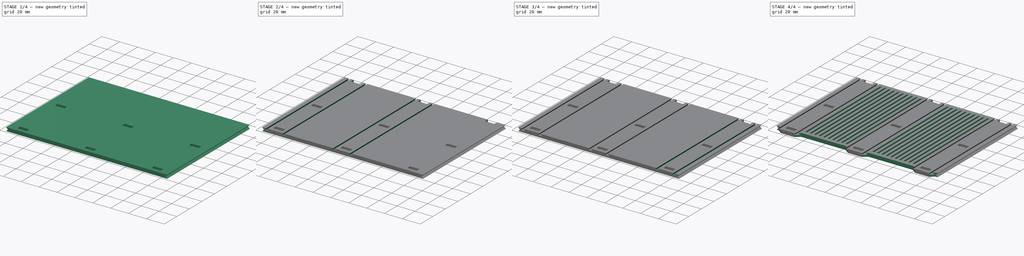
[diagram: build sequence overview — one tinted view per stage of 4, left to right]
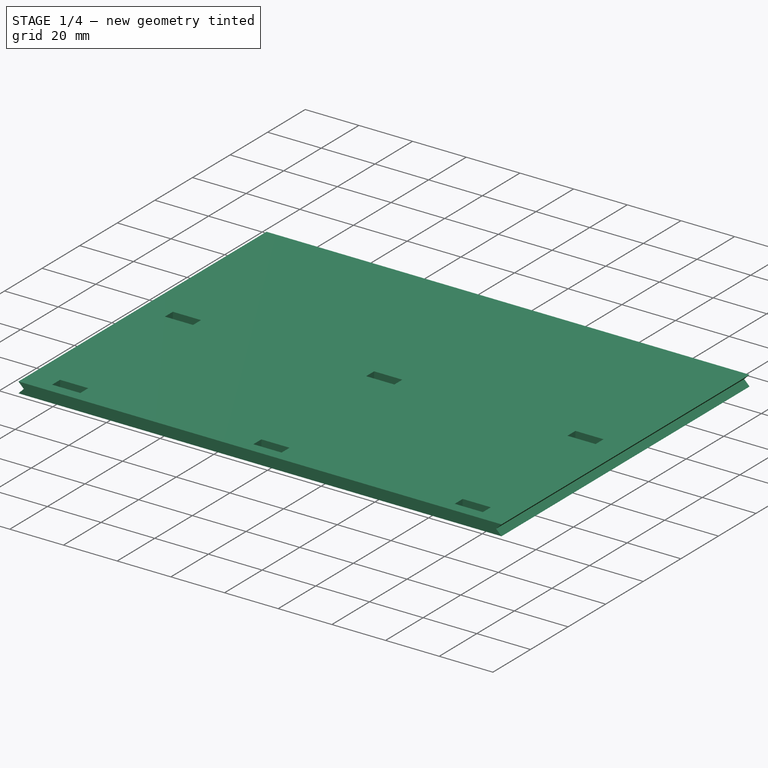
[diagram: stage 1 of 4 — iso view after this stage's code; geometry added in this stage tinted green]
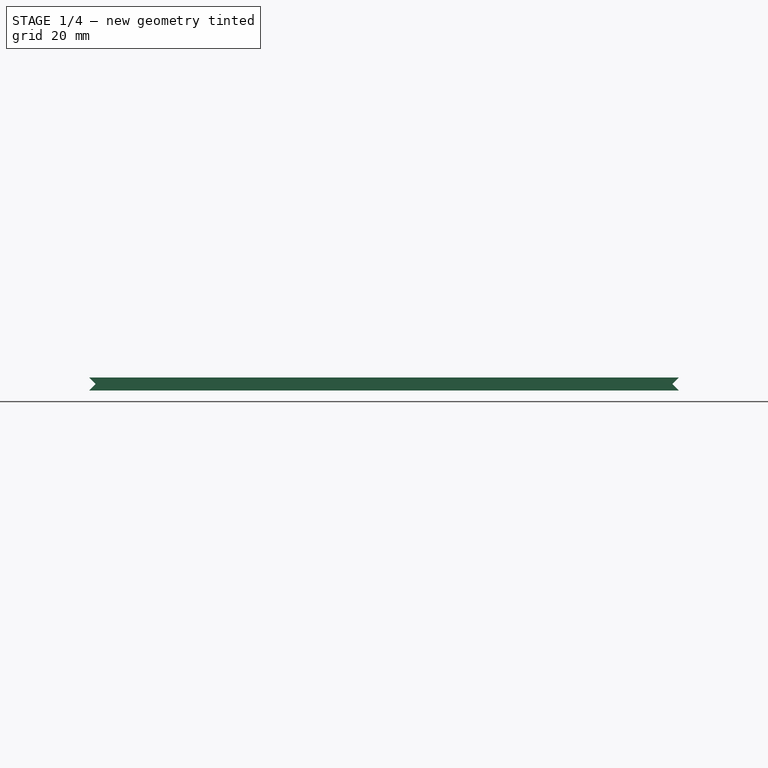
[diagram: stage 1 of 4 — front view after this stage's code; geometry added in this stage tinted green]
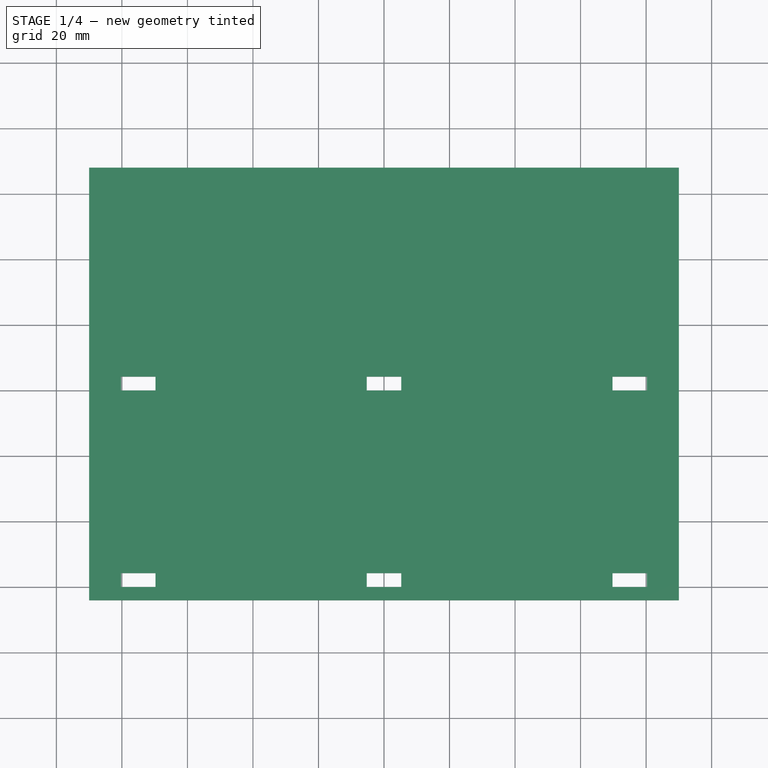
[diagram: stage 1 of 4 — top view after this stage's code; geometry added in this stage tinted green]
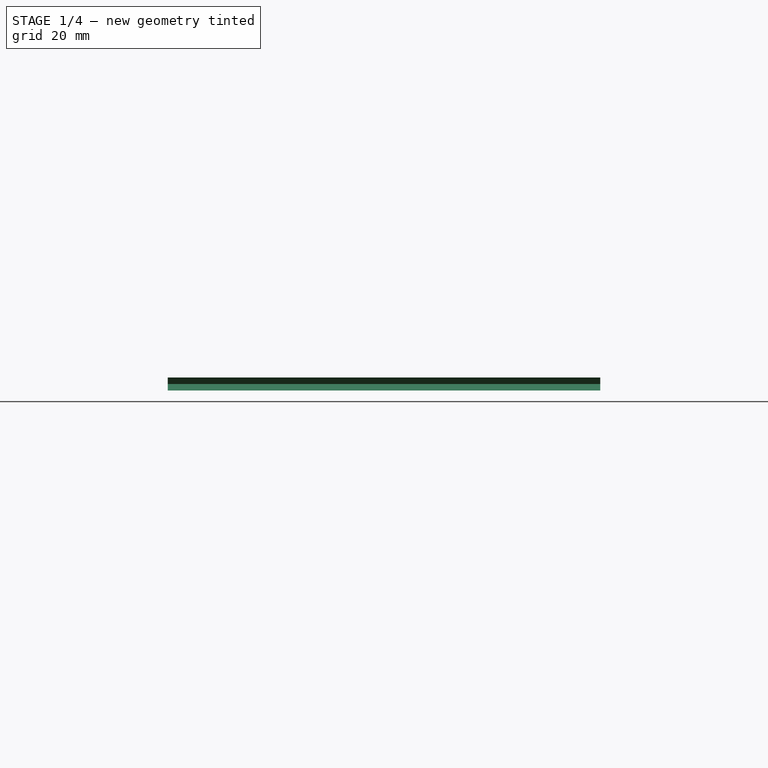
[diagram: stage 1 of 4 — right view after this stage's code; geometry added in this stage tinted green]
FCSTD DOCUMENT  (FreeCAD 0.18R16131 (Git))
Label: Wall
License: All rights reserved
LicenseURL: http://en.wikipedia.org/wiki/All_rights_reserved
objects: Sketcher::SketchObject×11, PartDesign::Pocket×8, PartDesign::Plane×7, PartDesign::AdditiveLoft×1, PartDesign::Fillet×1, PartDesign::Body×1, App::Part×1, Part::FeaturePython×1
note: 39 computed .brp shape members not serialized (recipe doc carries the construction recipe); baked Part::Feature solids carry a one-line shape summary decoded from their .brp

FEATURE [Sketcher::SketchObject] Sketch  label="HolesSketch1"
  MapMode = 5
  Support = -> [XY_Plane001]
  sketch-geometry (12):
    g0: LineSegment StartX=-80.25 StartY=4.25 StartZ=0 EndX=-69.75 EndY=4.25 EndZ=0
    g1: LineSegment StartX=-69.75 StartY=4.25 StartZ=0 EndX=-69.75 EndY=0 EndZ=0
    g2: LineSegment StartX=-69.75 StartY=0 StartZ=0 EndX=-80.25 EndY=1e-16 EndZ=0
    g3: LineSegment StartX=-80.25 StartY=1e-16 StartZ=0 EndX=-80.25 EndY=4.25 EndZ=0
    g4: LineSegment StartX=-5.25 StartY=4.25 StartZ=0 EndX=5.25 EndY=4.25 EndZ=0
    g5: LineSegment StartX=5.25 StartY=4.25 StartZ=0 EndX=5.25 EndY=0 EndZ=0
    g6: LineSegment StartX=5.25 StartY=0 StartZ=0 EndX=-5.25 EndY=0 EndZ=0
    g7: LineSegment StartX=-5.25 StartY=0 StartZ=0 EndX=-5.25 EndY=4.25 EndZ=0
    g8: LineSegment StartX=69.75 StartY=4.25 StartZ=0 EndX=80.25 EndY=4.25 EndZ=0
    g9: LineSegment StartX=80.25 StartY=4.25 StartZ=0 EndX=80.25 EndY=0 EndZ=0
    g10: LineSegment StartX=80.25 StartY=0 StartZ=0 EndX=69.75 EndY=0 EndZ=0
    g11: LineSegment StartX=69.75 StartY=0 StartZ=0 EndX=69.75 EndY=4.25 EndZ=0
  constraints (33):
    c: Coincident(g0,g1)
    c: Coincident(g1,g2)
    c: Coincident(g2,g3)
    c: Coincident(g3,g0)
    c: Horizontal(g0)
    c: Vertical(g1)
    c: Vertical(g3)
    c: PointOnObject(g1,g-1)
    c: Coincident(g4,g5)
    c: Coincident(g5,g6)
    c: Coincident(g6,g7)
    c: Coincident(g7,g4)
    c: Vertical(g5)
    c: Vertical(g7)
    c: PointOnObject(g5,g-1)
    c: Coincident(g8,g9)
    c: Coincident(g9,g10)
    c: Coincident(g10,g11)
    c: Coincident(g11,g8)
    c: Vertical(g9)
    c: Symmetric(g6,g5,g-2)
    c: Symmetric(g1,g10,g-2)
    c: Symmetric(g9,g2,g-2)
    c: Equal(g3,g1)
    c: Equal(g1,g7)
    c: Equal(g7,g5)
    c: Equal(g5,g11)
    c: Equal(g11,g9)
    c: Equal(g0,g4)
    c: Equal(g4,g8)
    c: Distance(g4) = 10.5
    c: Distance(g7) = 4.25
    c: Distance(g0,g8) = 160.5
FEATURE [PartDesign::Plane] DatumPlane  label="HolesPlane2"
  AttachmentOffset = pos=(0,60,0) rot=(0,0,1;0rad)
  Length = 30.3441
  MapMode = 5
  Placement = pos=(0,60,0) rot=(0,0,1;0rad)
  ResizeMode = 0
  Support = -> [XY_Plane001]
  Width = 144.094
FEATURE [PartDesign::Plane] DatumPlane001  label="HolesPlane3"
  AttachmentOffset = pos=(0,123.75,0) rot=(0,0,1;0rad)
  Length = 30.3441
  MapMode = 5
  Placement = pos=(0,123.75,0) rot=(0,0,1;0rad)
  ResizeMode = 0
  Support = -> [XY_Plane001]
  Width = 144.094
FEATURE [Sketcher::SketchObject] Sketch001  label="HolesSketch2"
  MapMode = 5
  Placement = pos=(0,60,0) rot=(0,0,1;0rad)
  Support = -> [DatumPlane]
  sketch-geometry (12):
    g0: LineSegment StartX=-80.25 StartY=4.25 StartZ=0 EndX=-69.75 EndY=4.25 EndZ=0
    g1: LineSegment StartX=-69.75 StartY=4.25 StartZ=0 EndX=-69.75 EndY=0 EndZ=0
    g2: LineSegment StartX=-69.75 StartY=0 StartZ=0 EndX=-80.25 EndY=1e-16 EndZ=0
    g3: LineSegment StartX=-80.25 StartY=1e-16 StartZ=0 EndX=-80.25 EndY=4.25 EndZ=0
    g4: LineSegment StartX=-5.25 StartY=4.25 StartZ=0 EndX=5.25 EndY=4.25 EndZ=0
    g5: LineSegment StartX=5.25 StartY=4.25 StartZ=0 EndX=5.25 EndY=0 EndZ=0
    g6: LineSegment StartX=5.25 StartY=0 StartZ=0 EndX=-5.25 EndY=0 EndZ=0
    g7: LineSegment StartX=-5.25 StartY=0 StartZ=0 EndX=-5.25 EndY=4.25 EndZ=0
    g8: LineSegment StartX=69.75 StartY=4.25 StartZ=0 EndX=80.25 EndY=4.25 EndZ=0
    g9: LineSegment StartX=80.25 StartY=4.25 StartZ=0 EndX=80.25 EndY=0 EndZ=0
    g10: LineSegment StartX=80.25 StartY=0 StartZ=0 EndX=69.75 EndY=0 EndZ=0
    g11: LineSegment StartX=69.75 StartY=0 StartZ=0 EndX=69.75 EndY=4.25 EndZ=0
  constraints (33):
    c: Coincident(g0,g1)
    c: Coincident(g1,g2)
    c: Coincident(g2,g3)
    c: Coincident(g3,g0)
    c: Horizontal(g0)
    c: Vertical(g1)
    c: Vertical(g3)
    c: PointOnObject(g1,g-1)
    c: Coincident(g4,g5)
    c: Coincident(g5,g6)
    c: Coincident(g6,g7)
    c: Coincident(g7,g4)
    c: Vertical(g5)
    c: Vertical(g7)
    c: PointOnObject(g5,g-1)
    c: Coincident(g8,g9)
    c: Coincident(g9,g10)
    c: Coincident(g10,g11)
    c: Coincident(g11,g8)
    c: Vertical(g9)
    c: Symmetric(g6,g5,g-2)
    c: Symmetric(g1,g10,g-2)
    c: Symmetric(g9,g2,g-2)
    c: Equal(g3,g1)
    c: Equal(g1,g7)
    c: Equal(g7,g5)
    c: Equal(g5,g11)
    c: Equal(g11,g9)
    c: Equal(g0,g4)
    c: Equal(g4,g8)
    c: Distance(g4) = 10.5
    c: Distance(g7) = 4.25
    c: Distance(g0,g8) = 160.5
FEATURE [Sketcher::SketchObject] Sketch002  label="HolesSketch3"
  MapMode = 5
  Placement = pos=(0,123.75,0) rot=(0,0,1;0rad)
  Support = -> [DatumPlane001]
  sketch-geometry (12):
    g0: LineSegment StartX=-80.125 StartY=4.25 StartZ=0 EndX=-69.875 EndY=4.25 EndZ=0
    g1: LineSegment StartX=-69.875 StartY=4.25 StartZ=0 EndX=-69.875 EndY=0 EndZ=0
    g2: LineSegment StartX=-69.875 StartY=0 StartZ=0 EndX=-80.125 EndY=1e-16 EndZ=0
    g3: LineSegment StartX=-80.125 StartY=1e-16 StartZ=0 EndX=-80.125 EndY=4.25 EndZ=0
    g4: LineSegment StartX=-5.125 StartY=4.25 StartZ=0 EndX=5.125 EndY=4.25 EndZ=0
    g5: LineSegment StartX=5.125 StartY=4.25 StartZ=0 EndX=5.125 EndY=0 EndZ=0
    g6: LineSegment StartX=5.125 StartY=0 StartZ=0 EndX=-5.125 EndY=0 EndZ=0
    g7: LineSegment StartX=-5.125 StartY=0 StartZ=0 EndX=-5.125 EndY=4.25 EndZ=0
    g8: LineSegment StartX=69.875 StartY=4.25 StartZ=0 EndX=80.125 EndY=4.25 EndZ=0
    g9: LineSegment StartX=80.125 StartY=4.25 StartZ=0 EndX=80.125 EndY=0 EndZ=0
    g10: LineSegment StartX=80.125 StartY=0 StartZ=0 EndX=69.875 EndY=0 EndZ=0
    g11: LineSegment StartX=69.875 StartY=0 StartZ=0 EndX=69.875 EndY=4.25 EndZ=0
  constraints (33):
    c: Coincident(g0,g1)
    c: Coincident(g1,g2)
    c: Coincident(g2,g3)
    c: Coincident(g3,g0)
    c: Horizontal(g0)
    c: Vertical(g1)
    c: Vertical(g3)
    c: PointOnObject(g1,g-1)
    c: Coincident(g4,g5)
    c: Coincident(g5,g6)
    c: Coincident(g6,g7)
    c: Coincident(g7,g4)
    c: Vertical(g5)
    c: Vertical(g7)
    c: PointOnObject(g5,g-1)
    c: Coincident(g8,g9)
    c: Coincident(g9,g10)
    c: Coincident(g10,g11)
    c: Coincident(g11,g8)
    c: Vertical(g9)
    c: Symmetric(g6,g5,g-2)
    c: Symmetric(g1,g10,g-2)
    c: Symmetric(g9,g2,g-2)
    c: Equal(g3,g1)
    c: Equal(g1,g7)
    c: Equal(g7,g5)
    c: Equal(g5,g11)
    c: Equal(g11,g9)
    c: Equal(g0,g4)
    c: Equal(g4,g8)
    c: Distance(g4) = 10.25
    c: Distance(g7) = 4.25
    c: Distance(g0,g8) = 160.25
FEATURE [Sketcher::SketchObject] Sketch003  label="WallSketchMid"
  MapMode = 5
  Support = -> [XY_Plane001]
  sketch-geometry (4):
    g0: LineSegment StartX=-88 StartY=128 StartZ=0 EndX=88 EndY=128 EndZ=0
    g1: LineSegment StartX=88 StartY=128 StartZ=0 EndX=88 EndY=-4 EndZ=0
    g2: LineSegment StartX=88 StartY=-4 StartZ=0 EndX=-88 EndY=-4 EndZ=0
    g3: LineSegment StartX=-88 StartY=-4 StartZ=0 EndX=-88 EndY=128 EndZ=0
  constraints (11):
    c: Coincident(g0,g1)
    c: Coincident(g1,g2)
    c: Coincident(g2,g3)
    c: Coincident(g3,g0)
    c: Horizontal(g2)
    c: Vertical(g1)
    c: Vertical(g3)
    c: Symmetric(g0,g0,g-2)
    c: Distance(g0) = 176
    c: DistanceY(g-1,g0) = 128
    c: DistanceY(g-1,g2) = -4
FEATURE [PartDesign::Plane] DatumPlane002  label="WallSketchPlaneTop"
  AttachmentOffset = pos=(0,0,2) rot=(0,0,1;0rad)
  Length = 30.3441
  MapMode = 5
  Placement = pos=(0,0,2) rot=(0,0,1;0rad)
  ResizeMode = 0
  Support = -> [XY_Plane001]
  Width = 144.094
FEATURE [Sketcher::SketchObject] Sketch004  label="WallSketchTop"
  MapMode = 5
  Placement = pos=(0,0,2) rot=(0,0,1;0rad)
  Support = -> [DatumPlane002]
  sketch-geometry (4):
    g0: LineSegment StartX=-90 StartY=128 StartZ=0 EndX=90 EndY=128 EndZ=0
    g1: LineSegment StartX=90 StartY=128 StartZ=0 EndX=90 EndY=-4 EndZ=0
    g2: LineSegment StartX=90 StartY=-4 StartZ=0 EndX=-90 EndY=-4 EndZ=0
    g3: LineSegment StartX=-90 StartY=-4 StartZ=0 EndX=-90 EndY=128 EndZ=0
  constraints (11):
    c: Coincident(g0,g1)
    c: Coincident(g1,g2)
    c: Coincident(g2,g3)
    c: Coincident(g3,g0)
    c: Horizontal(g2)
    c: Vertical(g1)
    c: Vertical(g3)
    c: Symmetric(g0,g0,g-2)
    c: Distance(g0) = 180
    c: DistanceY(g-1,g0) = 128
    c: DistanceY(g-1,g2) = -4
FEATURE [PartDesign::Plane] DatumPlane003  label="WallSketchPlaneBottom"
  AttachmentOffset = pos=(0,0,-2) rot=(0,0,1;0rad)
  Length = 30.3441
  MapMode = 5
  Placement = pos=(0,0,-2) rot=(0,0,1;0rad)
  ResizeMode = 0
  Support = -> [XY_Plane001]
  Width = 144.094
FEATURE [Sketcher::SketchObject] Sketch005  label="WallSketchBottom"
  MapMode = 5
  Placement = pos=(0,0,-2) rot=(0,0,1;0rad)
  Support = -> [DatumPlane003]
  sketch-geometry (4):
    g0: LineSegment StartX=-90 StartY=128 StartZ=0 EndX=90 EndY=128 EndZ=0
    g1: LineSegment StartX=90 StartY=128 StartZ=0 EndX=90 EndY=-4 EndZ=0
    g2: LineSegment StartX=90 StartY=-4 StartZ=0 EndX=-90 EndY=-4 EndZ=0
    g3: LineSegment StartX=-90 StartY=-4 StartZ=0 EndX=-90 EndY=128 EndZ=0
  constraints (11):
    c: Coincident(g0,g1)
    c: Coincident(g1,g2)
    c: Coincident(g2,g3)
    c: Coincident(g3,g0)
    c: Horizontal(g2)
    c: Vertical(g1)
    c: Vertical(g3)
    c: Symmetric(g0,g0,g-2)
    c: Distance(g0) = 180
    c: DistanceY(g-1,g0) = 128
    c: DistanceY(g-1,g2) = -4
FEATURE [PartDesign::AdditiveLoft] AdditiveLoft
  Closed = false
  Placement = pos=(0,0,-2) rot=(0,0,1;0rad)
  Profile = -> Sketch005
  Ruled = true
  Sections = -> [Sketch003,Sketch004]
FEATURE [PartDesign::Pocket] Pocket
  BaseFeature = -> AdditiveLoft
  Length = 5
  Length2 = 100
  Midplane = true
  Placement = pos=(0,0,-2) rot=(0,0,1;0rad)
  Profile = -> Sketch
  Type = 1
FEATURE [PartDesign::Pocket] Pocket001
  BaseFeature = -> Pocket
  Length = 5
  Length2 = 100
  Midplane = true
  Placement = pos=(0,0,-2) rot=(0,0,1;0rad)
  Profile = -> Sketch001
  Type = 1
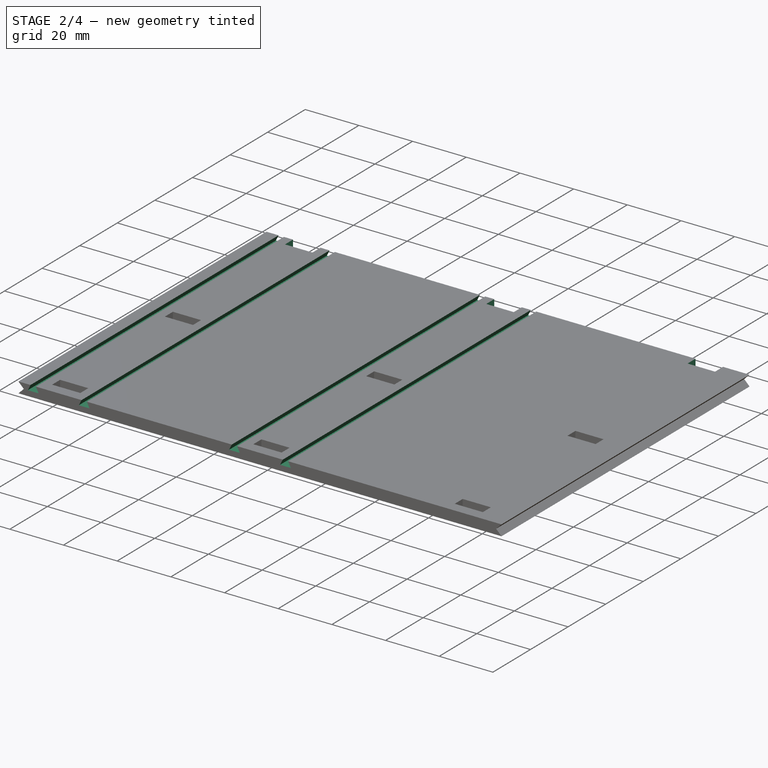
[diagram: stage 2 of 4 — iso view after this stage's code; geometry added in this stage tinted green]
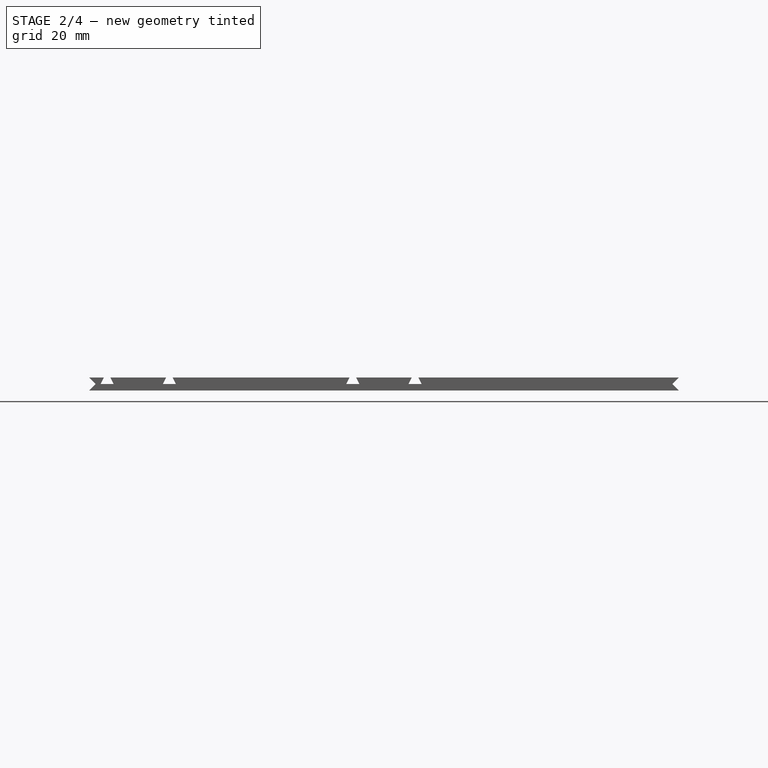
[diagram: stage 2 of 4 — front view after this stage's code; geometry added in this stage tinted green]
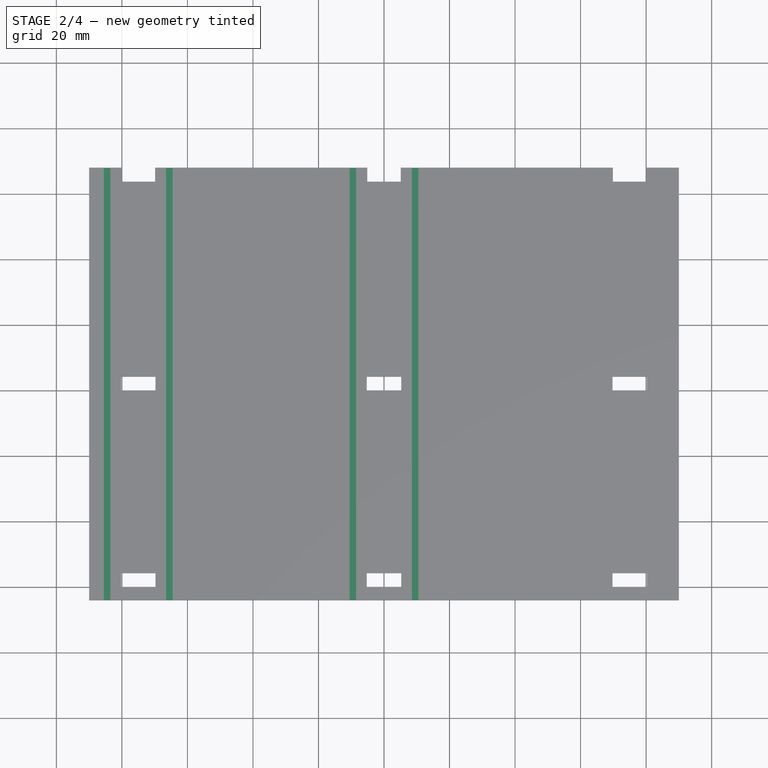
[diagram: stage 2 of 4 — top view after this stage's code; geometry added in this stage tinted green]
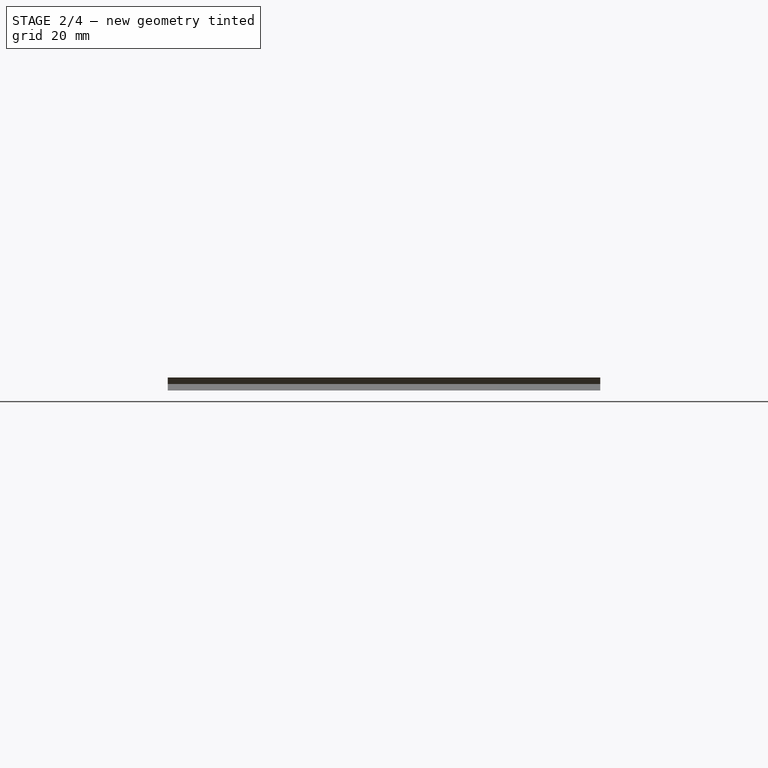
[diagram: stage 2 of 4 — right view after this stage's code; geometry added in this stage tinted green]
FEATURE [PartDesign::Pocket] Pocket002
  BaseFeature = -> Pocket001
  Length = 5
  Length2 = 100
  Midplane = true
  Placement = pos=(0,0,-2) rot=(0,0,1;0rad)
  Profile = -> Sketch002
  Type = 1
FEATURE [Sketcher::SketchObject] Sketch006  label="RailsSketch1"
  MapMode = 5
  Placement = pos=(0,0,0) rot=(1,0,0;1.5708rad)
  Support = -> [XZ_Plane001]
  sketch-geometry (8):
    g0: LineSegment StartX=-11.5 StartY=0 StartZ=0 EndX=-7.5 EndY=0 EndZ=0
    g1: LineSegment StartX=-11.5 StartY=0 StartZ=0 EndX=-10.5 EndY=2 EndZ=0
    g2: LineSegment StartX=-10.5 StartY=2 StartZ=0 EndX=-8.5 EndY=2 EndZ=0
    g3: LineSegment StartX=-8.5 StartY=2 StartZ=0 EndX=-7.5 EndY=0 EndZ=0
    g4: LineSegment StartX=7.5 StartY=0 StartZ=0 EndX=11.5 EndY=-1.62e-14 EndZ=0
    g5: LineSegment StartX=11.5 StartY=-1.62e-14 StartZ=0 EndX=10.5 EndY=2 EndZ=0
    g6: LineSegment StartX=10.5 StartY=2 StartZ=0 EndX=8.5 EndY=2 EndZ=0
    g7: LineSegment StartX=8.5 StartY=2 StartZ=0 EndX=7.5 EndY=0 EndZ=0
  constraints (22):
    c: Coincident(g1,g0)
    c: Coincident(g2,g1)
    c: Coincident(g3,g2)
    c: Coincident(g3,g0)
    c: Coincident(g5,g4)
    c: Coincident(g6,g5)
    c: Coincident(g7,g6)
    c: Coincident(g7,g4)
    c: Symmetric(g0,g4,g-2)
    c: Symmetric(g0,g4,g-2)
    c: Symmetric(g1,g5,g-2)
    c: Symmetric(g2,g6,g-2)
    c: PointOnObject(g0,g-1)
    c: PointOnObject(g0,g-1)
    c: Equal(g1,g3)
    c: Equal(g3,g7)
    c: Equal(g7,g5)
    c: Horizontal(g2)
    c: Distance(g0) = 4
    c: Distance(g0,g4) = 15
    c: DistanceY(g0,g1) = 2
    c: Distance(g2) = 2
FEATURE [PartDesign::Plane] DatumPlane004  label="RailsPlane2"
  AttachmentOffset = pos=(-75,0,0) rot=(0,0,1;0rad)
  Length = 93.2462
  MapMode = 5
  Placement = pos=(-75,0,0) rot=(1,0,0;1.5708rad)
  ResizeMode = 0
  Support = -> [XZ_Plane001]
  Width = 28.2462
FEATURE [Sketcher::SketchObject] Sketch007  label="RailsSketch2"
  MapMode = 5
  Placement = pos=(-75,0,0) rot=(1,0,0;1.5708rad)
  Support = -> [DatumPlane004]
  sketch-geometry (8):
    g0: LineSegment StartX=-11.5 StartY=0 StartZ=0 EndX=-7.5 EndY=0 EndZ=0
    g1: LineSegment StartX=-11.5 StartY=0 StartZ=0 EndX=-10.5 EndY=2 EndZ=0
    g2: LineSegment StartX=-10.5 StartY=2 StartZ=0 EndX=-8.5 EndY=2 EndZ=0
    g3: LineSegment StartX=-8.5 StartY=2 StartZ=0 EndX=-7.5 EndY=0 EndZ=0
    g4: LineSegment StartX=7.5 StartY=0 StartZ=0 EndX=11.5 EndY=-1.62e-14 EndZ=0
    g5: LineSegment StartX=11.5 StartY=-1.62e-14 StartZ=0 EndX=10.5 EndY=2 EndZ=0
    g6: LineSegment StartX=10.5 StartY=2 StartZ=0 EndX=8.5 EndY=2 EndZ=0
    g7: LineSegment StartX=8.5 StartY=2 StartZ=0 EndX=7.5 EndY=0 EndZ=0
  constraints (22):
    c: Coincident(g1,g0)
    c: Coincident(g2,g1)
    c: Coincident(g3,g2)
    c: Coincident(g3,g0)
    c: Coincident(g5,g4)
    c: Coincident(g6,g5)
    c: Coincident(g7,g6)
    c: Coincident(g7,g4)
    c: Symmetric(g0,g4,g-2)
    c: Symmetric(g0,g4,g-2)
    c: Symmetric(g1,g5,g-2)
    c: Symmetric(g2,g6,g-2)
    c: PointOnObject(g0,g-1)
    c: PointOnObject(g0,g-1)
    c: Equal(g1,g3)
    c: Equal(g3,g7)
    c: Equal(g7,g5)
    c: Horizontal(g2)
    c: Distance(g0) = 4
    c: Distance(g0,g4) = 15
    c: DistanceY(g0,g1) = 2
    c: Distance(g2) = 2
FEATURE [PartDesign::Plane] DatumPlane005  label="RailsPlane3"
  AttachmentOffset = pos=(75,0,0) rot=(0,0,1;0rad)
  Length = 93.2462
  MapMode = 5
  Placement = pos=(75,0,0) rot=(1,0,0;1.5708rad)
  ResizeMode = 0
  Support = -> [XZ_Plane001]
  Width = 28.2462
FEATURE [Sketcher::SketchObject] Sketch008  label="RailsSketch3"
  MapMode = 5
  Placement = pos=(75,0,0) rot=(1,0,0;1.5708rad)
  Support = -> [DatumPlane005]
  sketch-geometry (8):
    g0: LineSegment StartX=-11.5 StartY=0 StartZ=0 EndX=-7.5 EndY=0 EndZ=0
    g1: LineSegment StartX=-11.5 StartY=0 StartZ=0 EndX=-10.5 EndY=2 EndZ=0
    g2: LineSegment StartX=-10.5 StartY=2 StartZ=0 EndX=-8.5 EndY=2 EndZ=0
    g3: LineSegment StartX=-8.5 StartY=2 StartZ=0 EndX=-7.5 EndY=0 EndZ=0
    g4: LineSegment StartX=7.5 StartY=0 StartZ=0 EndX=11.5 EndY=-1.62e-14 EndZ=0
    g5: LineSegment StartX=11.5 StartY=-1.62e-14 StartZ=0 EndX=10.5 EndY=2 EndZ=0
    g6: LineSegment StartX=10.5 StartY=2 StartZ=0 EndX=8.5 EndY=2 EndZ=0
    g7: LineSegment StartX=8.5 StartY=2 StartZ=0 EndX=7.5 EndY=0 EndZ=0
  constraints (22):
    c: Coincident(g1,g0)
    c: Coincident(g2,g1)
    c: Coincident(g3,g2)
    c: Coincident(g3,g0)
    c: Coincident(g5,g4)
    c: Coincident(g6,g5)
    c: Coincident(g7,g6)
    c: Coincident(g7,g4)
    c: Symmetric(g0,g4,g-2)
    c: Symmetric(g0,g4,g-2)
    c: Symmetric(g1,g5,g-2)
    c: Symmetric(g2,g6,g-2)
    c: PointOnObject(g0,g-1)
    c: PointOnObject(g0,g-1)
    c: Equal(g1,g3)
    c: Equal(g3,g7)
    c: Equal(g7,g5)
    c: Horizontal(g2)
    c: Distance(g0) = 4
    c: Distance(g0,g4) = 15
    c: DistanceY(g0,g1) = 2
    c: Distance(g2) = 2
FEATURE [PartDesign::Pocket] Pocket003
  BaseFeature = -> Pocket002
  Length = 5
  Length2 = 100
  Midplane = true
  Placement = pos=(0,0,-2) rot=(0,0,1;0rad)
  Profile = -> Sketch006
  Type = 1
FEATURE [PartDesign::Pocket] Pocket004
  BaseFeature = -> Pocket003
  Length = 5
  Length2 = 100
  Midplane = true
  Placement = pos=(0,0,-2) rot=(0,0,1;0rad)
  Profile = -> Sketch007
  Type = 1
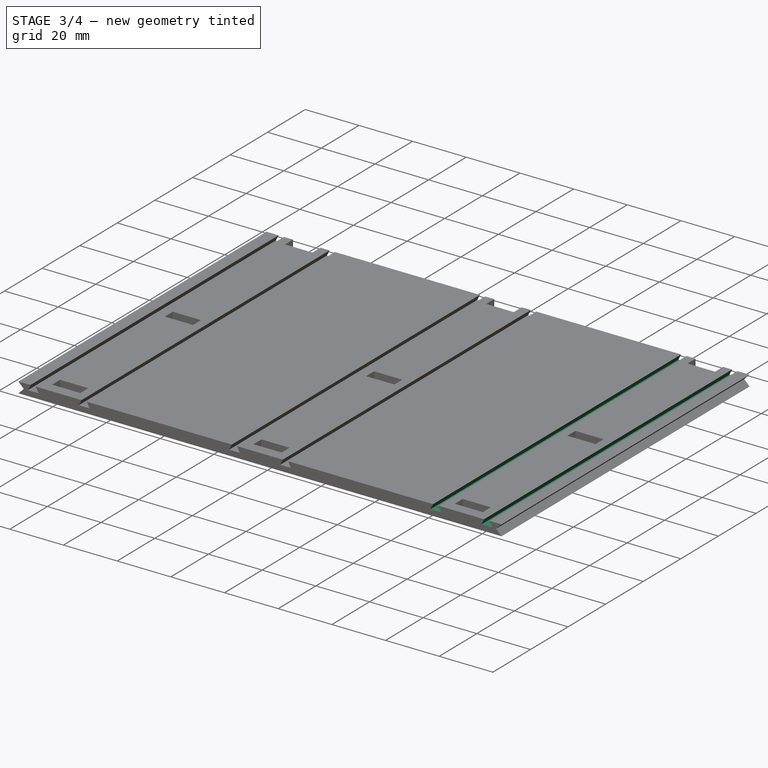
[diagram: stage 3 of 4 — iso view after this stage's code; geometry added in this stage tinted green]
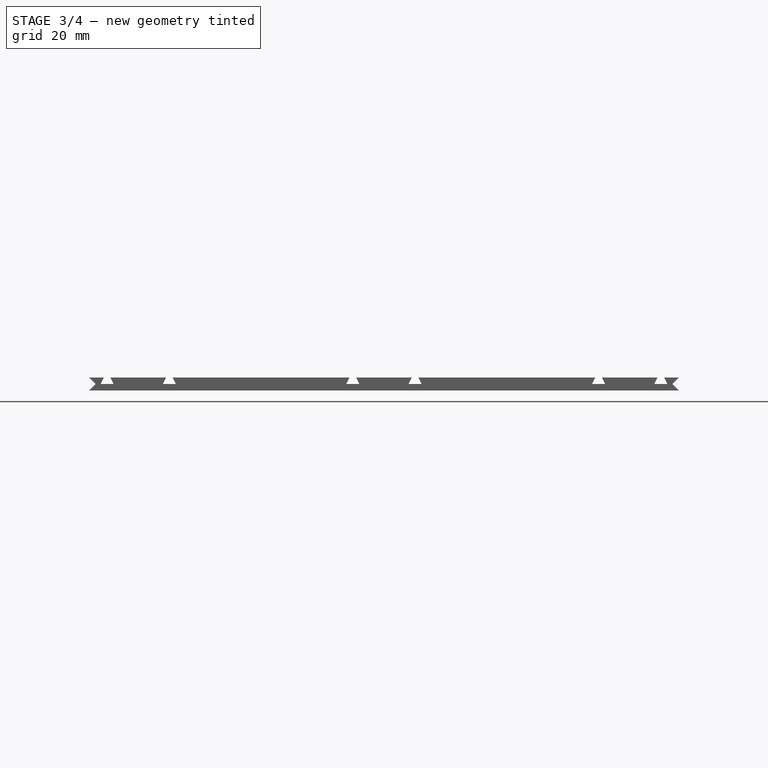
[diagram: stage 3 of 4 — front view after this stage's code; geometry added in this stage tinted green]
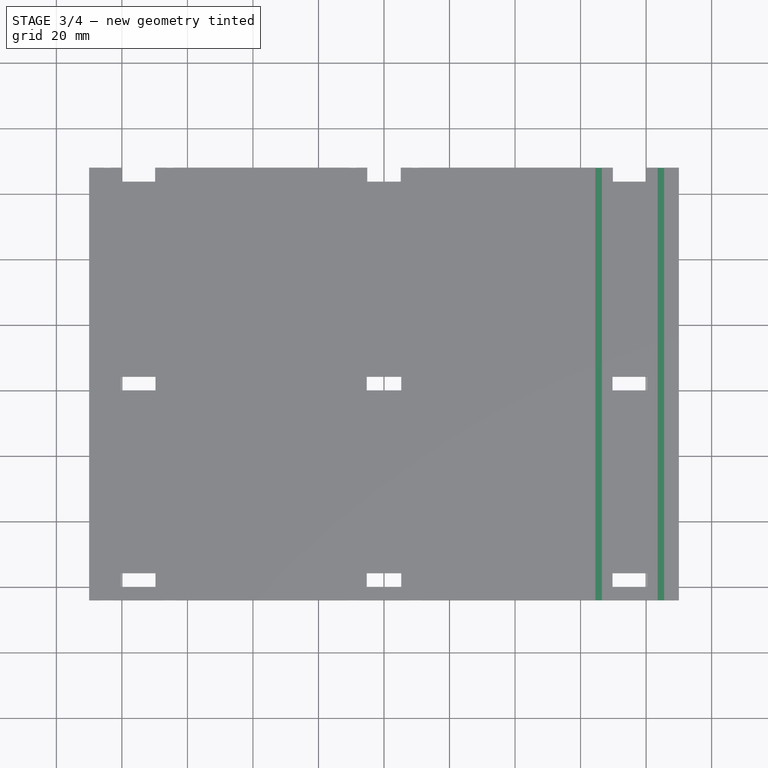
[diagram: stage 3 of 4 — top view after this stage's code; geometry added in this stage tinted green]
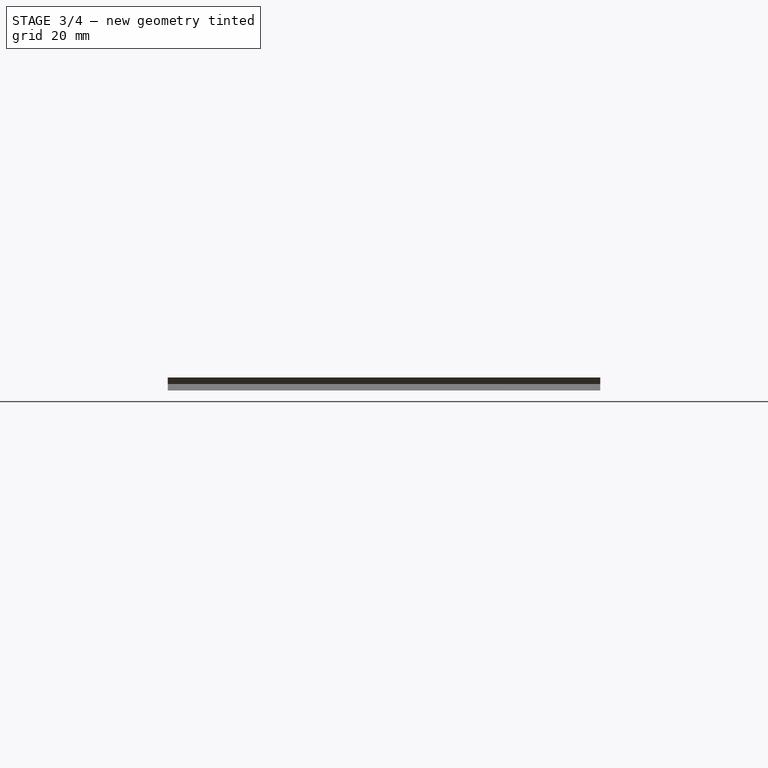
[diagram: stage 3 of 4 — right view after this stage's code; geometry added in this stage tinted green]
FEATURE [PartDesign::Pocket] Pocket005
  BaseFeature = -> Pocket004
  Length = 5
  Length2 = 100
  Midplane = true
  Placement = pos=(0,0,-2) rot=(0,0,1;0rad)
  Profile = -> Sketch008
  Type = 1
FEATURE [PartDesign::Fillet] Fillet
  Base = -> Pocket005 [Edge21,Edge24,Edge28,Edge25,Edge36,Edge33,Edge20,Edge17,Edge32,Edge29,Edge40,Edge37,Edge15,Edge13,Edge11,Edge9,Edge7,Edge5]
  BaseFeature = -> Pocket005
  Placement = pos=(0,0,-2) rot=(0,0,1;0rad)
  Radius = 1
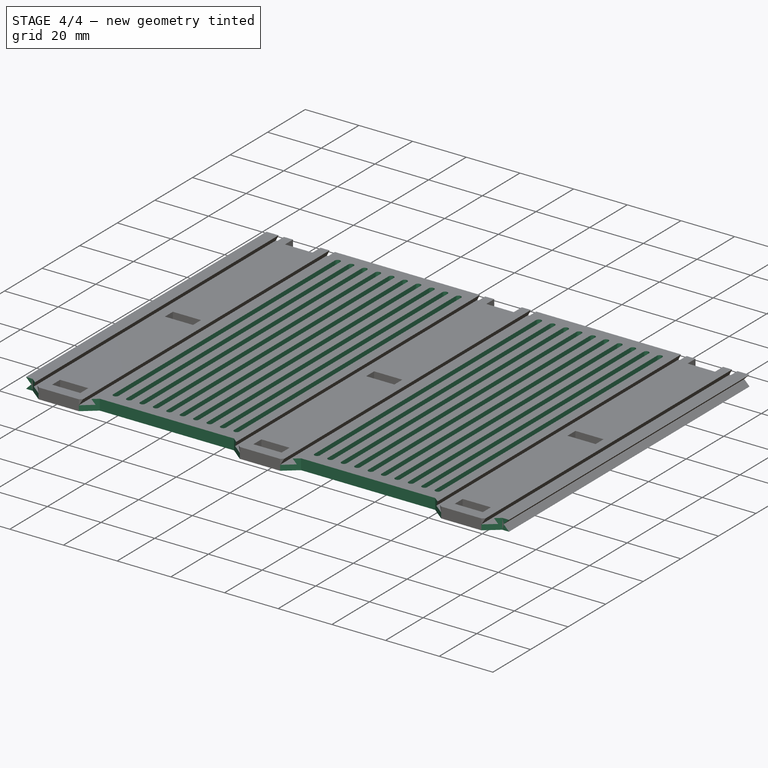
[diagram: stage 4 of 4 — iso view after this stage's code; geometry added in this stage tinted green]
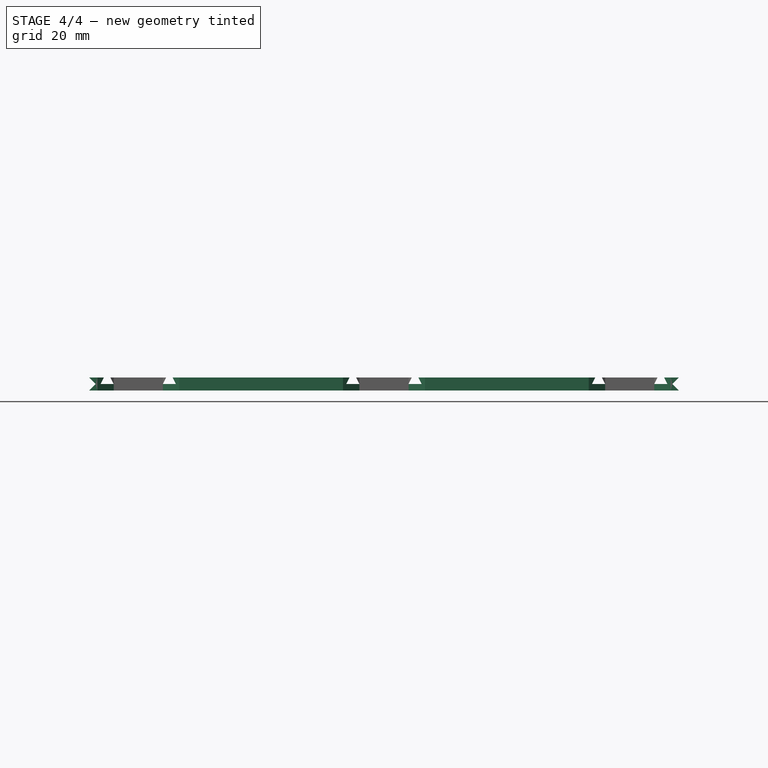
[diagram: stage 4 of 4 — front view after this stage's code; geometry added in this stage tinted green]
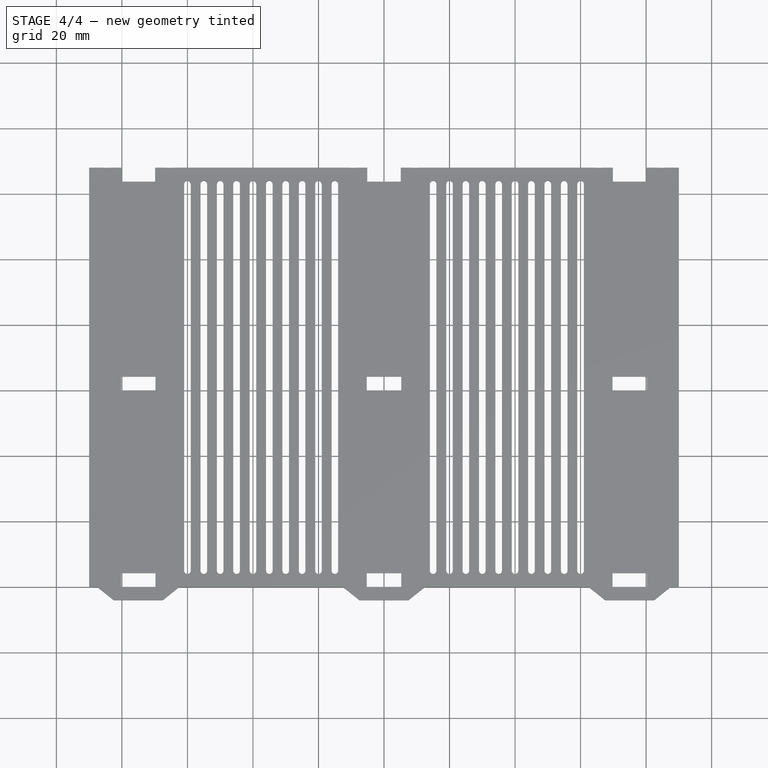
[diagram: stage 4 of 4 — top view after this stage's code; geometry added in this stage tinted green]
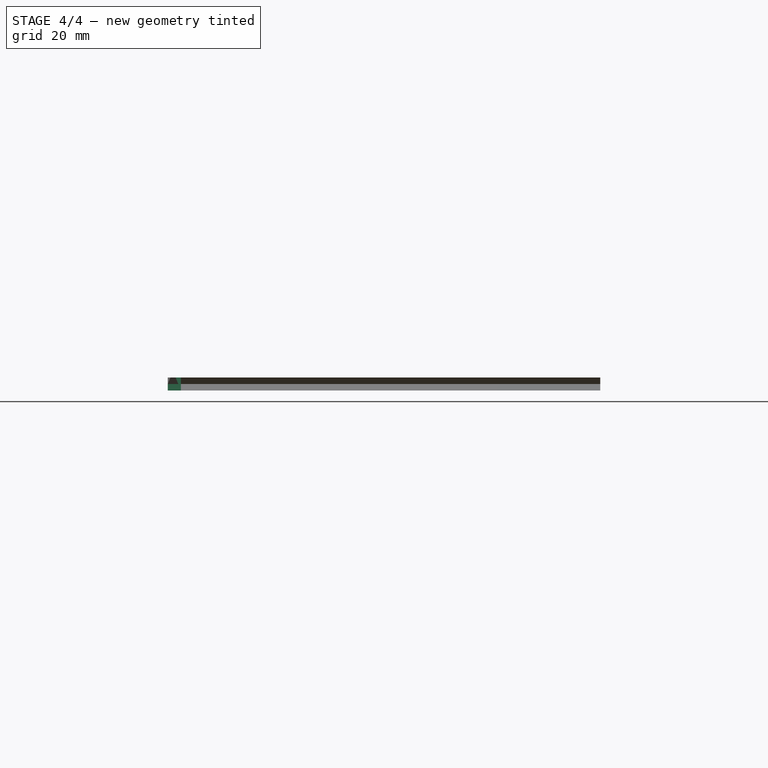
[diagram: stage 4 of 4 — right view after this stage's code; geometry added in this stage tinted green]
FEATURE [Sketcher::SketchObject] Sketch009
  MapMode = 5
  Support = -> [XY_Plane001]
  sketch-geometry (19):
    g0: LineSegment StartX=-100 StartY=0 StartZ=0 EndX=-100 EndY=-20 EndZ=0
    g1: LineSegment StartX=-100 StartY=-20 StartZ=0 EndX=100 EndY=-20 EndZ=0
    g2: LineSegment StartX=100 StartY=-20 StartZ=0 EndX=100 EndY=0 EndZ=0
    g3: LineSegment StartX=-12.5 StartY=0 StartZ=0 EndX=-62.5 EndY=0 EndZ=0
    g4: LineSegment StartX=-62.5 StartY=0 StartZ=0 EndX=-67.5 EndY=-4 EndZ=0
    g5: LineSegment StartX=-67.5 StartY=-4 StartZ=0 EndX=-82.5 EndY=-4 EndZ=0
    g6: LineSegment StartX=-82.5 StartY=-4 StartZ=0 EndX=-87.5 EndY=0 EndZ=0
    g7: LineSegment StartX=-87.5 StartY=0 StartZ=0 EndX=-100 EndY=0 EndZ=0
    g8: LineSegment StartX=-12.5 StartY=0 StartZ=0 EndX=-7.5 EndY=-4 EndZ=0
    g9: LineSegment StartX=-7.5 StartY=-4 StartZ=0 EndX=7.5 EndY=-4 EndZ=0
    g10: LineSegment StartX=7.5 StartY=-4 StartZ=0 EndX=12.5 EndY=0 EndZ=0
    g11: LineSegment StartX=12.5 StartY=0 StartZ=0 EndX=62.5 EndY=0 EndZ=0
    g12: LineSegment StartX=62.5 StartY=0 StartZ=0 EndX=67.5 EndY=-4 EndZ=0
    g13: LineSegment StartX=67.5 StartY=-4 StartZ=0 EndX=82.5 EndY=-4 EndZ=0
    g14: LineSegment StartX=82.5 StartY=-4 StartZ=0 EndX=87.5 EndY=0 EndZ=0
    g15: LineSegment StartX=87.5 StartY=0 StartZ=0 EndX=100 EndY=0 EndZ=0
    g16: LineSegment [constr] StartX=-87.5 StartY=0 StartZ=0 EndX=-62.5 EndY=0 EndZ=0
    g17: LineSegment [constr] StartX=-12.5 StartY=0 StartZ=0 EndX=12.5 EndY=0 EndZ=0
    g18: LineSegment [constr] StartX=62.5 StartY=0 StartZ=0 EndX=87.5 EndY=0 EndZ=0
  constraints (51):
    c: PointOnObject(g0,g-1)
    c: Vertical(g0)
    c: Coincident(g1,g0)
    c: Coincident(g2,g1)
    c: PointOnObject(g2,g-1)
    c: Vertical(g2)
    c: PointOnObject(g3,g-1)
    c: PointOnObject(g3,g-1)
    c: Coincident(g4,g3)
    c: Coincident(g5,g4)
    c: Horizontal(g5)
    c: Coincident(g6,g5)
    c: PointOnObject(g6,g-1)
    c: Coincident(g7,g6)
    c: Coincident(g7,g0)
    c: Coincident(g8,g3)
    c: Coincident(g9,g8)
    c: Horizontal(g9)
    c: Coincident(g10,g9)
    c: Coincident(g11,g10)
    c: Coincident(g12,g11)
    c: Coincident(g13,g12)
    c: Coincident(g14,g13)
    c: PointOnObject(g14,g-1)
    c: Coincident(g15,g14)
    c: Coincident(g15,g2)
    c: Symmetric(g3,g10,g-2)
    c: Equal(g13,g9)
    c: Equal(g9,g5)
    c: Equal(g6,g4)
    c: Equal(g4,g8)
    c: Equal(g8,g10)
    c: Equal(g10,g12)
    c: Equal(g12,g14)
    c: Horizontal(g13)
    c: Coincident(g16,g6)
    c: Coincident(g16,g3)
    c: Coincident(g17,g3)
    c: Coincident(g17,g10)
    c: Coincident(g18,g11)
    c: Coincident(g18,g14)
    c: Equal(g16,g17)
    c: Equal(g17,g18)
    c: Distance(g4,g3) = 4
    c: Distance(g9) = 15
    c: Distance(g17) = 25
    c: Distance(g4,g12) = 135
    c: Symmetric(g11,g3,g-2)
    c: Symmetric(g0,g1,g-2)
    c: Distance(g1) = 200
    c: Distance(g0) = 20
FEATURE [PartDesign::Pocket] Pocket006
  BaseFeature = -> Fillet
  Length = 5
  Length2 = 100
  Midplane = true
  Placement = pos=(0,0,-2) rot=(0,0,1;0rad)
  Profile = -> Sketch009
  Type = 1
FEATURE [PartDesign::Plane] DatumPlane006  label="AirHolesPlane"
  AttachmentOffset = pos=(0,0,2) rot=(0,0,1;0rad)
  Length = 30.3441
  MapMode = 5
  Placement = pos=(0,0,2) rot=(0,0,1;0rad)
  ResizeMode = 0
  Support = -> [XY_Plane001]
  Width = 144.094
FEATURE [Sketcher::SketchObject] Sketch010  label="AirHolesSketch"
  MapMode = 5
  Placement = pos=(0,0,2) rot=(0,0,1;0rad)
  Support = -> [DatumPlane006]
  sketch-geometry (98):
    g0: ArcOfCircle CenterX=-60 CenterY=123 CenterZ=0 NormalX=0 NormalY=0 NormalZ=1 AngleXU=0 Radius=1 StartAngle=5.2e-15 EndAngle=3.14159
    g1: ArcOfCircle CenterX=-60 CenterY=5 CenterZ=0 NormalX=0 NormalY=0 NormalZ=1 AngleXU=0 Radius=1 StartAngle=3.14159 EndAngle=6.28319
    g2: LineSegment StartX=-61 StartY=123 StartZ=0 EndX=-61 EndY=5 EndZ=0
    g3: LineSegment StartX=-59 StartY=123 StartZ=0 EndX=-59 EndY=5 EndZ=0
    g4: ArcOfCircle CenterX=-55 CenterY=5 CenterZ=0 NormalX=0 NormalY=0 NormalZ=1 AngleXU=0 Radius=1 StartAngle=3.14159 EndAngle=6.28319
    g5: LineSegment StartX=-56 StartY=123 StartZ=0 EndX=-56 EndY=5 EndZ=0
    g6: LineSegment StartX=-54 StartY=123 StartZ=0 EndX=-54 EndY=5 EndZ=0
    g7: ArcOfCircle CenterX=-55 CenterY=123 CenterZ=0 NormalX=0 NormalY=0 NormalZ=1 AngleXU=0 Radius=1 StartAngle=4.4e-15 EndAngle=3.14159
    g8: LineSegment [constr] StartX=-61 StartY=5 StartZ=0 EndX=-56 EndY=5 EndZ=0
    g9: ArcOfCircle CenterX=-50 CenterY=5 CenterZ=0 NormalX=0 NormalY=0 NormalZ=1 AngleXU=0 Radius=1 StartAngle=3.14159 EndAngle=6.28319
    g10: LineSegment StartX=-51 StartY=123 StartZ=0 EndX=-51 EndY=5 EndZ=0
    g11: LineSegment StartX=-49 StartY=123 StartZ=0 EndX=-49 EndY=5 EndZ=0
    g12: ArcOfCircle CenterX=-50 CenterY=123 CenterZ=0 NormalX=0 NormalY=0 NormalZ=1 AngleXU=0 Radius=1 StartAngle=4.7e-15 EndAngle=3.14159
    g13: LineSegment [constr] StartX=-56 StartY=5 StartZ=0 EndX=-51 EndY=5 EndZ=0
    g14: ArcOfCircle CenterX=-45 CenterY=5 CenterZ=0 NormalX=0 NormalY=0 NormalZ=1 AngleXU=0 Radius=1 StartAngle=3.14159 EndAngle=6.28319
    g15: LineSegment StartX=-46 StartY=123 StartZ=0 EndX=-46 EndY=5 EndZ=0
    g16: LineSegment StartX=-44 StartY=123 StartZ=0 EndX=-44 EndY=5 EndZ=0
    g17: ArcOfCircle CenterX=-45 CenterY=123 CenterZ=0 NormalX=0 NormalY=0 NormalZ=1 AngleXU=0 Radius=1 StartAngle=-1.8e-15 EndAngle=3.14159
    g18: LineSegment [constr] StartX=-51 StartY=5 StartZ=0 EndX=-46 EndY=5 EndZ=0
    g19: ArcOfCircle CenterX=-40 CenterY=5 CenterZ=0 NormalX=0 NormalY=0 NormalZ=1 AngleXU=0 Radius=1 StartAngle=3.14159 EndAngle=6.28319
    g20: LineSegment StartX=-41 StartY=123 StartZ=0 EndX=-41 EndY=5 EndZ=0
    g21: LineSegment StartX=-39 StartY=123 StartZ=0 EndX=-39 EndY=5 EndZ=0
    g22: ArcOfCircle CenterX=-40 CenterY=123 CenterZ=0 NormalX=0 NormalY=0 NormalZ=1 AngleXU=0 Radius=1 StartAngle=-1.8e-15 EndAngle=3.14159
    g23: LineSegment [constr] StartX=-46 StartY=5 StartZ=0 EndX=-41 EndY=5 EndZ=0
    g24: ArcOfCircle CenterX=-35 CenterY=5 CenterZ=0 NormalX=0 NormalY=0 NormalZ=1 AngleXU=0 Radius=1 StartAngle=3.14159 EndAngle=6.28319
    g25: LineSegment StartX=-36 StartY=123 StartZ=0 EndX=-36 EndY=5 EndZ=0
    g26: LineSegment StartX=-34 StartY=123 StartZ=0 EndX=-34 EndY=5 EndZ=0
    g27: ArcOfCircle CenterX=-35 CenterY=123 CenterZ=0 NormalX=0 NormalY=0 NormalZ=1 AngleXU=0 Radius=1 StartAngle=-1.8e-15 EndAngle=3.14159
    g28: LineSegment [constr] StartX=-41 StartY=5 StartZ=0 EndX=-36 EndY=5 EndZ=0
    g29: ArcOfCircle CenterX=-30 CenterY=5 CenterZ=0 NormalX=0 NormalY=0 NormalZ=1 AngleXU=0 Radius=1 StartAngle=3.14159 EndAngle=6.28319
    g30: LineSegment StartX=-31 StartY=123 StartZ=0 EndX=-31 EndY=5 EndZ=0
    g31: LineSegment StartX=-29 StartY=123 StartZ=0 EndX=-29 EndY=5 EndZ=0
    g32: ArcOfCircle CenterX=-30 CenterY=123 CenterZ=0 NormalX=0 NormalY=0 NormalZ=1 AngleXU=0 Radius=1 StartAngle=-1.8e-15 EndAngle=3.14159
    g33: LineSegment [constr] StartX=-36 StartY=5 StartZ=0 EndX=-31 EndY=5 EndZ=0
    g34: ArcOfCircle CenterX=-25 CenterY=5 CenterZ=0 NormalX=0 NormalY=0 NormalZ=1 AngleXU=0 Radius=1 StartAngle=3.14159 EndAngle=6.28319
    g35: LineSegment StartX=-26 StartY=123 StartZ=0 EndX=-26 EndY=5 EndZ=0
    g36: LineSegment StartX=-24 StartY=123 StartZ=0 EndX=-24 EndY=5 EndZ=0
    g37: ArcOfCircle CenterX=-25 CenterY=123 CenterZ=0 NormalX=0 NormalY=0 NormalZ=1 AngleXU=0 Radius=1 StartAngle=-1.8e-15 EndAngle=3.14159
    g38: LineSegment [constr] StartX=-31 StartY=5 StartZ=0 EndX=-26 EndY=5 EndZ=0
    g39: ArcOfCircle CenterX=-20 CenterY=5 CenterZ=0 NormalX=0 NormalY=0 NormalZ=1 AngleXU=0 Radius=1 StartAngle=3.14159 EndAngle=6.28319
    g40: LineSegment StartX=-21 StartY=123 StartZ=0 EndX=-21 EndY=5 EndZ=0
    g41: LineSegment StartX=-19 StartY=123 StartZ=0 EndX=-19 EndY=5 EndZ=0
    g42: ArcOfCircle CenterX=-20 CenterY=123 CenterZ=0 NormalX=0 NormalY=0 NormalZ=1 AngleXU=0 Radius=1 StartAngle=-1.8e-15 EndAngle=3.14159
    g43: LineSegment [constr] StartX=-26 StartY=5 StartZ=0 EndX=-21 EndY=5 EndZ=0
    g44: ArcOfCircle CenterX=-15 CenterY=5 CenterZ=0 NormalX=0 NormalY=0 NormalZ=1 AngleXU=0 Radius=1 StartAngle=3.14159 EndAngle=6.28319
    g45: LineSegment StartX=-16 StartY=123 StartZ=0 EndX=-16 EndY=5 EndZ=0
    g46: LineSegment StartX=-14 StartY=123 StartZ=0 EndX=-14 EndY=5 EndZ=0
    g47: ArcOfCircle CenterX=-15 CenterY=123 CenterZ=0 NormalX=0 NormalY=0 NormalZ=1 AngleXU=0 Radius=1 StartAngle=3.1e-15 EndAngle=3.14159
    g48: LineSegment [constr] StartX=-21 StartY=5 StartZ=0 EndX=-16 EndY=5 EndZ=0
    g49: ArcOfCircle CenterX=60 CenterY=123 CenterZ=0 NormalX=0 NormalY=0 NormalZ=1 AngleXU=0 Radius=1 StartAngle=-9e-16 EndAngle=3.14159
    g50: ArcOfCircle CenterX=60 CenterY=5 CenterZ=0 NormalX=0 NormalY=0 NormalZ=1 AngleXU=0 Radius=1 StartAngle=3.14159 EndAngle=6.28319
    g51: LineSegment StartX=61 StartY=123 StartZ=0 EndX=61 EndY=5 EndZ=0
    g52: LineSegment StartX=59 StartY=123 StartZ=0 EndX=59 EndY=5 EndZ=0
    g53: ArcOfCircle CenterX=55 CenterY=5 CenterZ=0 NormalX=0 NormalY=0 NormalZ=1 AngleXU=0 Radius=1 StartAngle=3.14159 EndAngle=6.28319
    g54: LineSegment StartX=56 StartY=123 StartZ=0 EndX=56 EndY=5 EndZ=0
    g55: LineSegment StartX=54 StartY=123 StartZ=0 EndX=54 EndY=5 EndZ=0
    g56: ArcOfCircle CenterX=55 CenterY=123 CenterZ=0 NormalX=0 NormalY=0 NormalZ=1 AngleXU=0 Radius=1 StartAngle=-9e-16 EndAngle=3.14159
    g57: LineSegment [constr] StartX=61 StartY=5 StartZ=0 EndX=56 EndY=5 EndZ=0
    g58: ArcOfCircle CenterX=50 CenterY=5 CenterZ=0 NormalX=0 NormalY=0 NormalZ=1 AngleXU=0 Radius=1 StartAngle=3.14159 EndAngle=6.28319
    g59: LineSegment StartX=51 StartY=123 StartZ=0 EndX=51 EndY=5 EndZ=0
    g60: LineSegment StartX=49 StartY=123 StartZ=0 EndX=49 EndY=5 EndZ=0
    g61: ArcOfCircle CenterX=50 CenterY=123 CenterZ=0 NormalX=0 NormalY=0 NormalZ=1 AngleXU=0 Radius=1 StartAngle=-4.4e-15 EndAngle=3.14159
    g62: LineSegment [constr] StartX=56 StartY=5 StartZ=0 EndX=51 EndY=5 EndZ=0
    g63: ArcOfCircle CenterX=45 CenterY=5 CenterZ=0 NormalX=0 NormalY=0 NormalZ=1 AngleXU=0 Radius=1 StartAngle=3.14159 EndAngle=6.28319
    g64: LineSegment StartX=46 StartY=123 StartZ=0 EndX=46 EndY=5 EndZ=0
    g65: LineSegment StartX=44 StartY=123 StartZ=0 EndX=44 EndY=5 EndZ=0
    g66: ArcOfCircle CenterX=45 CenterY=123 CenterZ=0 NormalX=0 NormalY=0 NormalZ=1 AngleXU=0 Radius=1 StartAngle=4.3e-15 EndAngle=3.14159
    g67: LineSegment [constr] StartX=51 StartY=5 StartZ=0 EndX=46 EndY=5 EndZ=0
    g68: ArcOfCircle CenterX=40 CenterY=5 CenterZ=0 NormalX=0 NormalY=0 NormalZ=1 AngleXU=0 Radius=1 StartAngle=3.14159 EndAngle=6.28319
    g69: LineSegment StartX=41 StartY=123 StartZ=0 EndX=41 EndY=5 EndZ=0
    g70: LineSegment StartX=39 StartY=123 StartZ=0 EndX=39 EndY=5 EndZ=0
    g71: ArcOfCircle CenterX=40 CenterY=123 CenterZ=0 NormalX=0 NormalY=0 NormalZ=1 AngleXU=0 Radius=1 StartAngle=2.7e-15 EndAngle=3.14159
    g72: LineSegment [constr] StartX=46 StartY=5 StartZ=0 EndX=41 EndY=5 EndZ=0
    g73: ArcOfCircle CenterX=35 CenterY=5 CenterZ=0 NormalX=0 NormalY=0 NormalZ=1 AngleXU=0 Radius=1 StartAngle=3.14159 EndAngle=6.28319
    g74: LineSegment StartX=36 StartY=123 StartZ=0 EndX=36 EndY=5 EndZ=0
    g75: LineSegment StartX=34 StartY=123 StartZ=0 EndX=34 EndY=5 EndZ=0
    g76: ArcOfCircle CenterX=35 CenterY=123 CenterZ=0 NormalX=0 NormalY=0 NormalZ=1 AngleXU=0 Radius=1 StartAngle=-9e-16 EndAngle=3.14159
    g77: LineSegment [constr] StartX=41 StartY=5 StartZ=0 EndX=36 EndY=5 EndZ=0
    g78: ArcOfCircle CenterX=30 CenterY=5 CenterZ=0 NormalX=0 NormalY=0 NormalZ=1 AngleXU=0 Radius=1 StartAngle=3.14159 EndAngle=6.28319
    g79: LineSegment StartX=31 StartY=123 StartZ=0 EndX=31 EndY=5 EndZ=0
    g80: LineSegment StartX=29 StartY=123 StartZ=0 EndX=29 EndY=5 EndZ=0
    g81: ArcOfCircle CenterX=30 CenterY=123 CenterZ=0 NormalX=0 NormalY=0 NormalZ=1 AngleXU=0 Radius=1 StartAngle=-4.4e-15 EndAngle=3.14159
    g82: LineSegment [constr] StartX=36 StartY=5 StartZ=0 EndX=31 EndY=5 EndZ=0
    g83: ArcOfCircle CenterX=25 CenterY=5 CenterZ=0 NormalX=0 NormalY=0 NormalZ=1 AngleXU=0 Radius=1 StartAngle=3.14159 EndAngle=6.28319
    g84: LineSegment StartX=26 StartY=123 StartZ=0 EndX=26 EndY=5 EndZ=0
    g85: LineSegment StartX=24 StartY=123 StartZ=0 EndX=24 EndY=5 EndZ=0
    g86: ArcOfCircle CenterX=25 CenterY=123 CenterZ=0 NormalX=0 NormalY=0 NormalZ=1 AngleXU=0 Radius=1 StartAngle=-6.2e-15 EndAngle=3.14159
    g87: LineSegment [constr] StartX=31 StartY=5 StartZ=0 EndX=26 EndY=5 EndZ=0
    g88: ArcOfCircle CenterX=20 CenterY=5 CenterZ=0 NormalX=0 NormalY=0 NormalZ=1 AngleXU=0 Radius=1 StartAngle=3.14159 EndAngle=6.28319
    g89: LineSegment StartX=21 StartY=123 StartZ=0 EndX=21 EndY=5 EndZ=0
    g90: LineSegment StartX=19 StartY=123 StartZ=0 EndX=19 EndY=5 EndZ=0
    g91: ArcOfCircle CenterX=20 CenterY=123 CenterZ=0 NormalX=0 NormalY=0 NormalZ=1 AngleXU=0 Radius=1 StartAngle=6.1e-15 EndAngle=3.14159
    g92: LineSegment [constr] StartX=26 StartY=5 StartZ=0 EndX=21 EndY=5 EndZ=0
    g93: ArcOfCircle CenterX=15 CenterY=5 CenterZ=0 NormalX=0 NormalY=0 NormalZ=1 AngleXU=0 Radius=1 StartAngle=3.14159 EndAngle=6.28319
    g94: LineSegment StartX=16 StartY=123 StartZ=0 EndX=16 EndY=5 EndZ=0
    g95: LineSegment StartX=14 StartY=123 StartZ=0 EndX=14 EndY=5 EndZ=0
    g96: ArcOfCircle CenterX=15 CenterY=123 CenterZ=0 NormalX=0 NormalY=0 NormalZ=1 AngleXU=0 Radius=1 StartAngle=-9e-16 EndAngle=3.14159
    g97: LineSegment [constr] StartX=21 StartY=5 StartZ=0 EndX=16 EndY=5 EndZ=0
  constraints (236):
    c: Tangent(g0,g3) = 1.5708
    c: Tangent(g0,g2) = -1.5708
    c: Tangent(g2,g1) = -1.5708
    c: Tangent(g3,g1) = 1.5708
    c: Vertical(g2)
    c: Equal(g0,g1)
    c: Radius(g0) = 1
    c: Distance(g2) = 118
    c: Distance(g1,g-1) = 5
    c: DistanceX(g-2,g1) = -60
    c: Tangent(g7,g6) = 1.5708
    c: Tangent(g7,g5) = -1.5708
    c: Tangent(g5,g4) = -1.5708
    c: Tangent(g6,g4) = 1.5708
    c: Vertical(g5)
    c: Equal(g7,g4)
    c: Equal(g0,g7) = 1
    c: Equal(g2,g5) = 118
    c: Coincident(g1,g8)
    c: Coincident(g4,g8)
    c: Distance(g8) = 5
    c: Tangent(g12,g11) = 1.5708
    c: Tangent(g12,g10) = -1.5708
    c: Tangent(g10,g9) = -1.5708
    c: Tangent(g11,g9) = 1.5708
    c: Vertical(g10)
    c: Equal(g12,g9)
    c: Equal(g0,g12) = 1
    c: Equal(g2,g10) = 118
    c: Coincident(g4,g13)
    c: Coincident(g9,g13)
    c: Equal(g8,g13)
    c: Parallel(g13,g8)
    c: Tangent(g17,g16) = 1.5708
    c: Tangent(g17,g15) = -1.5708
    c: Tangent(g15,g14) = -1.5708
    c: Tangent(g16,g14) = 1.5708
    c: Vertical(g15)
    c: Equal(g17,g14)
    c: Equal(g0,g17) = 1
    c: Equal(g2,g15) = 118
    c: Coincident(g9,g18)
    c: Coincident(g14,g18)
    c: Equal(g8,g18)
    c: Parallel(g18,g8)
    c: Tangent(g22,g21) = 1.5708
    c: Tangent(g22,g20) = -1.5708
    c: Tangent(g20,g19) = -1.5708
    c: Tangent(g21,g19) = 1.5708
    c: Vertical(g20)
    c: Equal(g22,g19)
    c: Equal(g0,g22) = 1
    c: Equal(g2,g20) = 118
    c: Coincident(g14,g23)
    c: Coincident(g19,g23)
    c: Equal(g8,g23)
    c: Parallel(g23,g8)
    c: Tangent(g27,g26) = 1.5708
    c: Tangent(g27,g25) = -1.5708
    c: Tangent(g25,g24) = -1.5708
    c: Tangent(g26,g24) = 1.5708
    c: Vertical(g25)
    c: Equal(g27,g24)
    c: Equal(g0,g27) = 1
    c: Equal(g2,g25) = 118
    c: Coincident(g19,g28)
    c: Coincident(g24,g28)
    c: Equal(g8,g28)
    c: Parallel(g28,g8)
    c: Tangent(g32,g31) = 1.5708
    c: Tangent(g32,g30) = -1.5708
    c: Tangent(g30,g29) = -1.5708
    c: Tangent(g31,g29) = 1.5708
    c: Vertical(g30)
    c: Equal(g32,g29)
    c: Equal(g0,g32) = 1
    c: Equal(g2,g30) = 118
    c: Coincident(g24,g33)
    c: Coincident(g29,g33)
    c: Equal(g8,g33)
    c: Parallel(g33,g8)
    c: Tangent(g37,g36) = 1.5708
    c: Tangent(g37,g35) = -1.5708
    c: Tangent(g35,g34) = -1.5708
    c: Tangent(g36,g34) = 1.5708
    c: Vertical(g35)
    c: Equal(g37,g34)
    c: Equal(g0,g37) = 1
    c: Equal(g2,g35) = 118
    c: Coincident(g29,g38)
    c: Coincident(g34,g38)
    c: Equal(g8,g38)
    c: Parallel(g38,g8)
    c: Tangent(g42,g41) = 1.5708
    c: Tangent(g42,g40) = -1.5708
    c: Tangent(g40,g39) = -1.5708
    c: Tangent(g41,g39) = 1.5708
    c: Vertical(g40)
    c: Equal(g42,g39)
    c: Equal(g0,g42) = 1
    c: Equal(g2,g40) = 118
    c: Coincident(g34,g43)
    c: Coincident(g39,g43)
    c: Equal(g8,g43)
    c: Parallel(g43,g8)
    c: Tangent(g47,g46) = 1.5708
    c: Tangent(g47,g45) = -1.5708
    c: Tangent(g45,g44) = -1.5708
    c: Tangent(g46,g44) = 1.5708
    c: Vertical(g45)
    c: Equal(g47,g44)
    c: Equal(g0,g47) = 1
    c: Equal(g2,g45) = 118
    c: Coincident(g39,g48)
    c: Coincident(g44,g48)
    c: Equal(g8,g48)
    c: Parallel(g48,g8)
    c: Horizontal(g8)
    c: Tangent(g49,g52) = -1.5708
    c: Tangent(g49,g51) = 1.5708
    c: Tangent(g51,g50) = 1.5708
    c: Tangent(g52,g50) = -1.5708
    c: Vertical(g51)
    c: Equal(g49,g50)
    c: Radius(g49) = 1
    c: Distance(g51) = 118
    c: Tangent(g56,g55) = -1.5708
    c: Tangent(g56,g54) = 1.5708
    c: Tangent(g54,g53) = 1.5708
    c: Tangent(g55,g53) = -1.5708
    c: Vertical(g54)
    c: Equal(g56,g53)
    c: Equal(g49,g56) = 1
    c: Equal(g51,g54) = 118
    c: Coincident(g50,g57)
    c: Coincident(g53,g57)
    c: Distance(g57) = 5
    c: Tangent(g61,g60) = -1.5708
    c: Tangent(g61,g59) = 1.5708
    c: Tangent(g59,g58) = 1.5708
    c: Tangent(g60,g58) = -1.5708
    c: Vertical(g59)
    c: Equal(g61,g58)
    c: Equal(g49,g61) = 1
    c: Equal(g51,g59) = 118
    c: Coincident(g53,g62)
    c: Coincident(g58,g62)
    c: Equal(g57,g62)
    c: Parallel(g62,g57)
    c: Tangent(g66,g65) = -1.5708
    c: Tangent(g66,g64) = 1.5708
    c: Tangent(g64,g63) = 1.5708
    c: Tangent(g65,g63) = -1.5708
    c: Vertical(g64)
    c: Equal(g66,g63)
    c: Equal(g49,g66) = 1
    c: Equal(g51,g64) = 118
    c: Coincident(g58,g67)
    c: Coincident(g63,g67)
    c: Equal(g57,g67)
    c: Parallel(g67,g57)
    c: Tangent(g71,g70) = -1.5708
    c: Tangent(g71,g69) = 1.5708
    c: Tangent(g69,g68) = 1.5708
    c: Tangent(g70,g68) = -1.5708
    c: Vertical(g69)
    c: Equal(g71,g68)
    c: Equal(g49,g71) = 1
    c: Equal(g51,g69) = 118
    c: Coincident(g63,g72)
    c: Coincident(g68,g72)
    c: Equal(g57,g72)
    c: Parallel(g72,g57)
    c: Tangent(g76,g75) = -1.5708
    c: Tangent(g76,g74) = 1.5708
    c: Tangent(g74,g73) = 1.5708
    c: Tangent(g75,g73) = -1.5708
    c: Vertical(g74)
    c: Equal(g76,g73)
    c: Equal(g49,g76) = 1
    c: Equal(g51,g74) = 118
    c: Coincident(g68,g77)
    c: Coincident(g73,g77)
    c: Equal(g57,g77)
    c: Parallel(g77,g57)
    c: Tangent(g81,g80) = -1.5708
    c: Tangent(g81,g79) = 1.5708
    c: Tangent(g79,g78) = 1.5708
    c: Tangent(g80,g78) = -1.5708
    c: Vertical(g79)
    c: Equal(g81,g78)
    c: Equal(g49,g81) = 1
    c: Equal(g51,g79) = 118
    c: Coincident(g73,g82)
    c: Coincident(g78,g82)
    c: Equal(g57,g82)
    c: Parallel(g82,g57)
    c: Tangent(g86,g85) = -1.5708
    c: Tangent(g86,g84) = 1.5708
    c: Tangent(g84,g83) = 1.5708
    c: Tangent(g85,g83) = -1.5708
    c: Vertical(g84)
    c: Equal(g86,g83)
    c: Equal(g49,g86) = 1
    c: Equal(g51,g84) = 118
    c: Coincident(g78,g87)
    c: Coincident(g83,g87)
    c: Equal(g57,g87)
    c: Parallel(g87,g57)
    c: Tangent(g91,g90) = -1.5708
    c: Tangent(g91,g89) = 1.5708
    c: Tangent(g89,g88) = 1.5708
    c: Tangent(g90,g88) = -1.5708
    c: Vertical(g89)
    c: Equal(g91,g88)
    c: Equal(g49,g91) = 1
    c: Equal(g51,g89) = 118
    c: Coincident(g83,g92)
    c: Coincident(g88,g92)
    c: Equal(g57,g92)
    c: Parallel(g92,g57)
    c: Tangent(g96,g95) = -1.5708
    c: Tangent(g96,g94) = 1.5708
    c: Tangent(g94,g93) = 1.5708
    c: Tangent(g95,g93) = -1.5708
    c: Vertical(g94)
    c: Equal(g96,g93)
    c: Equal(g49,g96) = 1
    c: Equal(g51,g94) = 118
    c: Coincident(g88,g97)
    c: Coincident(g93,g97)
    c: Equal(g57,g97)
    c: Parallel(g97,g57)
    c: Horizontal(g57)
    c: DistanceX(g-2,g50) = 60
    c: DistanceY(g-1,g50) = 5
FEATURE [PartDesign::Pocket] Pocket007  label="AirHolesPocket"
  BaseFeature = -> Pocket006
  Length = 5
  Length2 = 100
  Placement = pos=(0,0,-2) rot=(0,0,1;0rad)
  Profile = -> Sketch010
  Type = 1
FEATURE [PartDesign::Body] Body  label="WallBody"
  Group = -> [Sketch,DatumPlane,DatumPlane001,Sketch001,Sketch002,Sketch003,Sketch004,Sketch005,DatumPlane002,DatumPlane003,AdditiveLoft,Pocket,Pocket001,Pocket002,Sketch006,DatumPlane004,Sketch007,Sketch008,DatumPlane005,Pocket003,Pocket004,Pocket005,Fillet,Sketch009,Pocket006,DatumPlane006,Sketch010,Pocket007]
  Origin = -> Origin001
  Tip = -> Pocket007
FEATURE [App::Part] Part  label="WallPart"
  Group = -> [Body]
  Origin = -> Origin
FEATURE [Part::FeaturePython] refine  label="WallBody_Refined"  # WARN: FeaturePython — macro-defined, semantics opaque (R4)
  Base = -> Body
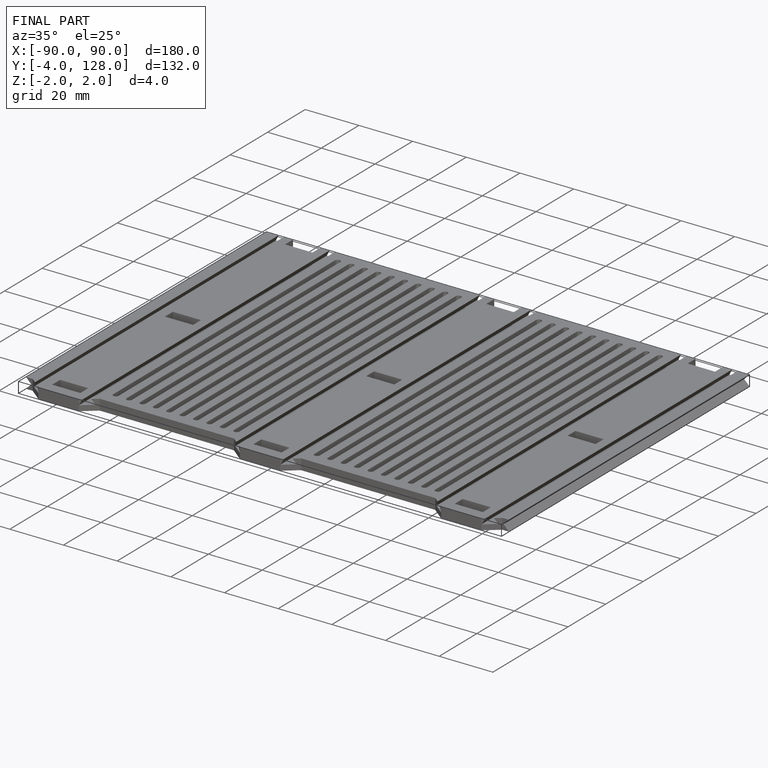
[diagram: finished part — iso view with bounding-box wireframe]
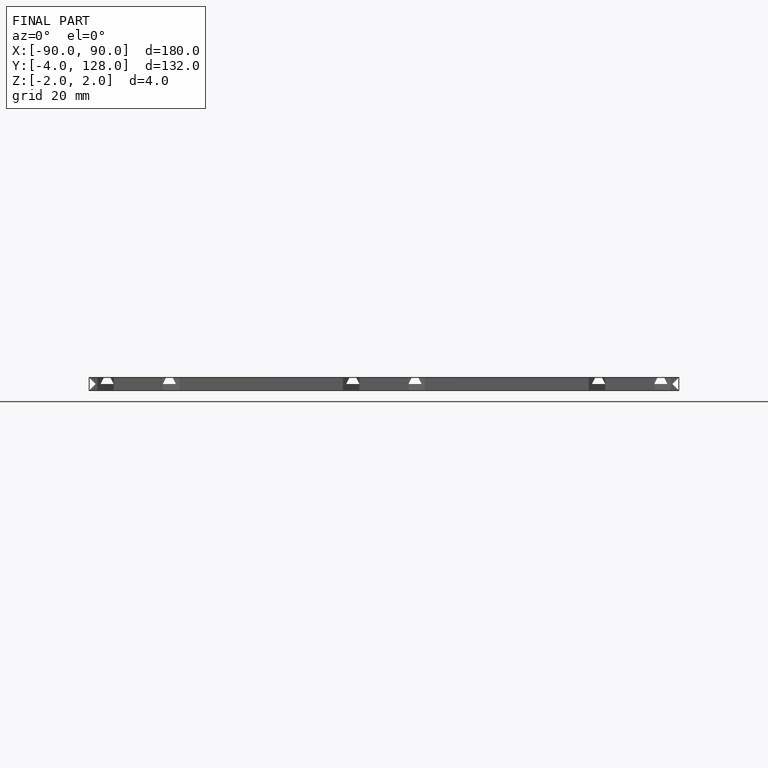
[diagram: finished part — front view with bounding-box wireframe]
